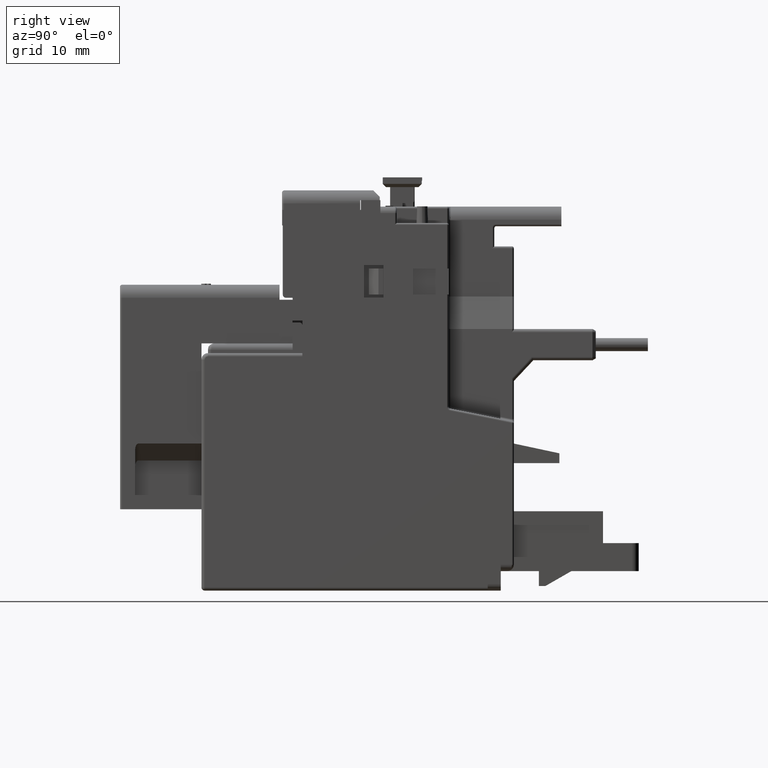
[diagram: clean part render]
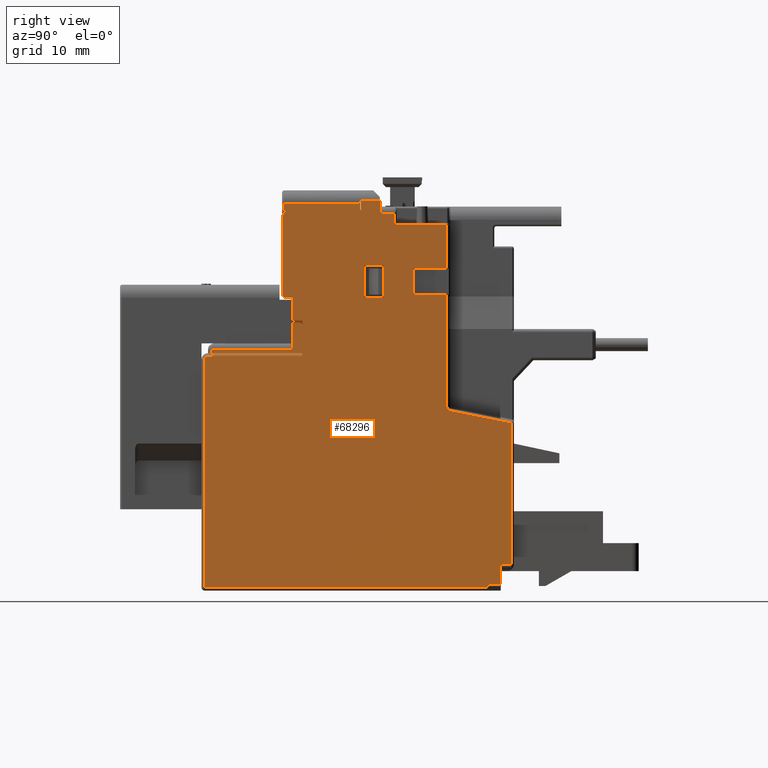
[diagram: same view with one face highlighted and labeled with its STEP entity id]
A machine part, right view. The second image highlights one B-rep face of the part: STEP entity #68296.
In plain terms, the highlighted planar face has unit normal (-1, 0, 0).
Its self-contained STEP definition (entity closure, byte-faithful):
#1878=DIRECTION('',(0.E0,1.E0,0.E0));
#1879=VECTOR('',#1878,1.712598425197E0);
#1880=CARTESIAN_POINT('',(8.858267716535E-1,-5.275590551181E-1,
-2.283464566929E0));
#1881=LINE('',#1880,#1879);
#1901=DIRECTION('',(0.E0,0.E0,1.E0));
#1902=VECTOR('',#1901,1.968503937007E-2);
#1903=CARTESIAN_POINT('',(8.858267716535E-1,1.185039370079E0,
-2.283464566929E0));
#1904=LINE('',#1903,#1902);
#1908=DIRECTION('',(0.E0,1.E0,4.511946372077E-14));
#1909=VECTOR('',#1908,7.874015748031E-2);
#1910=CARTESIAN_POINT('',(8.858267716535E-1,1.185039370079E0,
-2.263779527559E0));
#1911=LINE('',#1910,#1909);
#1922=CARTESIAN_POINT('',(8.858267716535E-1,9.606299212598E-1,
-1.191104678314E0));
#1923=DIRECTION('',(1.E0,0.E0,0.E0));
#1924=DIRECTION('',(0.E0,-1.E0,-3.759955310064E-14));
#1925=AXIS2_PLACEMENT_3D('',#1922,#1923,#1924);
#1930=DIRECTION('',(0.E0,9.805806756909E-1,-1.961161351385E-1));
#1931=VECTOR('',#1930,3.821321529739E-1);
#1932=CARTESIAN_POINT('',(8.858267716535E-1,9.559972566510E-1,
-1.214268001362E0));
#1933=LINE('',#1932,#1931);
#1937=DIRECTION('',(0.E0,0.E0,-1.E0));
#1938=VECTOR('',#1937,1.181102362205E-1);
#1939=CARTESIAN_POINT('',(8.858267716535E-1,1.263779527559E0,
-2.145669291339E0));
#1940=LINE('',#1939,#1938);
#1944=CARTESIAN_POINT('',(8.858267716535E-1,-5.078740157480E-1,
-9.055118110236E-1));
#1945=DIRECTION('',(-1.E0,0.E0,0.E0));
#1946=DIRECTION('',(0.E0,-1.E0,0.E0));
#1947=AXIS2_PLACEMENT_3D('',#1944,#1945,#1946);
#1952=DIRECTION('',(0.E0,0.E0,1.E0));
#1953=VECTOR('',#1952,1.968503937008E-2);
#1954=CARTESIAN_POINT('',(8.858267716535E-1,6.299212598425E-2,
-8.858267716535E-1));
#1955=LINE('',#1954,#1953);
#1959=DIRECTION('',(0.E0,-1.E0,0.E0));
#1960=VECTOR('',#1959,5.511811023622E-1);
#1961=CARTESIAN_POINT('',(8.858267716535E-1,6.299212598425E-2,
-8.661417322835E-1));
#1962=LINE('',#1961,#1960);
#1966=DIRECTION('',(0.E0,0.E0,1.E0));
#1967=VECTOR('',#1966,1.653543307087E-1);
#1968=CARTESIAN_POINT('',(8.858267716535E-1,3.937007874016E-3,
-8.464566929134E-1));
#1969=LINE('',#1968,#1967);
#1973=DIRECTION('',(0.E0,1.E0,1.409983241274E-14));
#1974=VECTOR('',#1973,3.937007874016E-2);
#1975=CARTESIAN_POINT('',(8.858267716535E-1,3.937007874016E-3,
-6.811023622047E-1));
#1976=LINE('',#1975,#1974);
#1980=CARTESIAN_POINT('',(8.858267716535E-1,4.330708661417E-2,
-7.007874015748E-1));
#1981=DIRECTION('',(-1.E0,0.E0,0.E0));
#1982=DIRECTION('',(0.E0,-4.370948047949E-14,1.E0));
#1983=AXIS2_PLACEMENT_3D('',#1980,#1981,#1982);
#1988=DIRECTION('',(0.E0,0.E0,1.E0));
#1989=VECTOR('',#1988,3.149606299213E-2);
#1990=CARTESIAN_POINT('',(8.858267716535E-1,6.299212598425E-2,
-7.007874015748E-1));
#1991=LINE('',#1990,#1989);
#1995=DIRECTION('',(0.E0,-1.E0,0.E0));
#1996=VECTOR('',#1995,5.905511811024E-2);
#1997=CARTESIAN_POINT('',(8.858267716535E-1,6.299212598425E-2,
-6.692913385827E-1));
#1998=LINE('',#1997,#1996);
#2002=DIRECTION('',(0.E0,0.E0,1.E0));
#2003=VECTOR('',#2002,1.377952755906E-1);
#2004=CARTESIAN_POINT('',(8.858267716535E-1,3.937007874016E-3,
-6.692913385827E-1));
#2005=LINE('',#2004,#2003);
#2009=DIRECTION('',(0.E0,-1.E0,0.E0));
#2010=VECTOR('',#2009,3.937007874016E-2);
#2011=CARTESIAN_POINT('',(8.858267716535E-1,3.937007874016E-3,
-5.314960629921E-1));
#2012=LINE('',#2011,#2010);
#2016=CARTESIAN_POINT('',(8.858267716535E-1,-3.543307086614E-2,
-5.118110236220E-1));
#2017=DIRECTION('',(-1.E0,0.E0,0.E0));
#2018=DIRECTION('',(0.E0,0.E0,-1.E0));
#2019=AXIS2_PLACEMENT_3D('',#2016,#2017,#2018);
#2024=CARTESIAN_POINT('',(8.858267716535E-1,-1.574803149606E-2,
-3.937007874016E-2));
#2025=DIRECTION('',(-1.E0,0.E0,0.E0));
#2026=DIRECTION('',(0.E0,-1.E0,0.E0));
#2027=AXIS2_PLACEMENT_3D('',#2024,#2025,#2026);
#2032=DIRECTION('',(0.E0,-1.E0,0.E0));
#2033=VECTOR('',#2032,3.149606299212E-2);
#2034=CARTESIAN_POINT('',(8.858267716535E-1,-1.574803149607E-2,0.E0));
#2035=LINE('',#2034,#2033);
#2039=DIRECTION('',(0.E0,0.E0,-1.E0));
#2040=VECTOR('',#2039,3.937007874016E-2);
#2041=CARTESIAN_POINT('',(8.858267716535E-1,4.133858267717E-1,
3.937007874016E-2));
#2042=LINE('',#2041,#2040);
#2046=DIRECTION('',(0.E0,1.E0,0.E0));
#2047=VECTOR('',#2046,1.181102362205E-1);
#2048=CARTESIAN_POINT('',(8.858267716535E-1,4.173228346457E-1,
5.905511811024E-2));
#2049=LINE('',#2048,#2047);
#2053=DIRECTION('',(0.E0,0.E0,-1.E0));
#2054=VECTOR('',#2053,7.874015748031E-2);
#2055=CARTESIAN_POINT('',(8.858267716535E-1,5.354330708661E-1,
5.905511811024E-2));
#2056=LINE('',#2055,#2054);
#2060=DIRECTION('',(0.E0,-1.E0,0.E0));
#2061=VECTOR('',#2060,2.047244094488E-1);
#2062=CARTESIAN_POINT('',(8.858267716535E-1,9.370078740157E-1,
-3.543307086614E-1));
#2063=LINE('',#2062,#2061);
#2067=DIRECTION('',(0.E0,0.E0,-1.E0));
#2068=VECTOR('',#2067,1.968503937008E-1);
#2069=CARTESIAN_POINT('',(8.858267716535E-1,4.370078740157E-1,
-3.346456692913E-1));
#2070=LINE('',#2069,#2068);
#2074=DIRECTION('',(0.E0,0.E0,1.E0));
#2075=VECTOR('',#2074,1.968503937008E-1);
#2076=CARTESIAN_POINT('',(8.858267716535E-1,5.551181102362E-1,
-5.314960629921E-1));
#2077=LINE('',#2076,#2075);
#2095=DIRECTION('',(0.E0,0.E0,1.E0));
#2096=VECTOR('',#2095,1.574803149606E-1);
#2097=CARTESIAN_POINT('',(8.858267716535E-1,7.322834645669E-1,
-5.118110236220E-1));
#2098=LINE('',#2097,#2096);
#2124=DIRECTION('',(0.E0,0.E0,1.E0));
#2125=VECTOR('',#2124,2.637795275591E-1);
#2126=CARTESIAN_POINT('',(8.858267716535E-1,9.370078740157E-1,
-3.543307086614E-1));
#2127=LINE('',#2126,#2125);
#2162=DIRECTION('',(0.E0,-1.E0,0.E0));
#2163=VECTOR('',#2162,3.149606299213E-1);
#2164=CARTESIAN_POINT('',(8.858267716535E-1,9.370078740157E-1,
-9.055118110236E-2));
#2165=LINE('',#2164,#2163);
#2195=DIRECTION('',(0.E0,0.E0,1.E0));
#2196=VECTOR('',#2195,7.086614173228E-2);
#2197=CARTESIAN_POINT('',(8.858267716535E-1,6.220472440945E-1,
-9.055118110236E-2));
#2198=LINE('',#2197,#2196);
#3003=DIRECTION('',(0.E0,1.E0,0.E0));
#3004=VECTOR('',#3003,1.181102362205E-1);
#3005=CARTESIAN_POINT('',(8.858267716535E-1,4.370078740157E-1,
-3.346456692913E-1));
#3006=LINE('',#3005,#3004);
#4546=DIRECTION('',(0.E0,0.E0,-1.E0));
#4547=VECTOR('',#4546,5.905511811024E-2);
#4548=CARTESIAN_POINT('',(8.858267716535E-1,4.173228346457E-1,
5.905511811024E-2));
#4549=LINE('',#4548,#4547);
#4798=DIRECTION('',(0.E0,0.E0,-1.E0));
#4799=VECTOR('',#4798,4.724409448819E-1);
#4800=CARTESIAN_POINT('',(8.858267716535E-1,-5.511811023622E-2,
-3.937007874016E-2));
#4801=LINE('',#4800,#4799);
#8942=DIRECTION('',(0.E0,-1.E0,0.E0));
#8943=VECTOR('',#8942,1.181102362205E-1);
#8944=CARTESIAN_POINT('',(8.858267716535E-1,5.551181102362E-1,
-5.314960629921E-1));
#8945=LINE('',#8944,#8943);
#9134=DIRECTION('',(0.E0,-1.E0,0.E0));
#9135=VECTOR('',#9134,2.047244094488E-1);
#9136=CARTESIAN_POINT('',(8.858267716535E-1,9.370078740157E-1,
-5.118110236220E-1));
#9137=LINE('',#9136,#9135);
#25310=DIRECTION('',(3.835154416265E-14,-1.E0,0.E0));
#25311=VECTOR('',#25310,4.921259842520E-1);
#25312=CARTESIAN_POINT('',(8.858267716535E-1,3.937007874016E-3,
-8.464566929134E-1));
#25313=LINE('',#25312,#25311);
#25403=DIRECTION('',(-9.531486711011E-13,-1.494582235750E-13,-1.E0));
#25404=VECTOR('',#25403,1.968503937008E-2);
#25405=CARTESIAN_POINT('',(8.858267716536E-1,-4.881889763780E-1,
-8.464566929134E-1));
#25406=LINE('',#25405,#25404);
#28837=DIRECTION('',(-4.263125800086E-13,1.E0,2.255973186038E-13));
#28838=VECTOR('',#28837,6.692913385828E-2);
#28839=CARTESIAN_POINT('',(8.858267716535E-1,1.263779527559E0,
-2.145669291339E0));
#28840=LINE('',#28839,#28838);
#28871=DIRECTION('',(3.344439574290E-14,0.E0,1.E0));
#28872=VECTOR('',#28871,8.564590090228E-1);
#28873=CARTESIAN_POINT('',(8.858267716535E-1,1.330708661417E0,
-2.145669291339E0));
#28874=LINE('',#28873,#28872);
#28947=DIRECTION('',(0.E0,0.E0,1.E0));
#28948=VECTOR('',#28947,6.792936546921E-1);
#28949=CARTESIAN_POINT('',(8.858267716535E-1,9.370078740157E-1,
-1.191104678314E0));
#28950=LINE('',#28949,#28948);
#33752=DIRECTION('',(0.E0,-1.E0,0.E0));
#33753=VECTOR('',#33752,4.606299212598E-1);
#33754=CARTESIAN_POINT('',(8.858267716535E-1,4.133858267717E-1,
3.937007874016E-2));
#33755=LINE('',#33754,#33753);
#34218=DIRECTION('',(0.E0,0.E0,-1.E0));
#34219=VECTOR('',#34218,3.937007874016E-2);
#34220=CARTESIAN_POINT('',(8.858267716535E-1,-4.724409448819E-2,
3.937007874016E-2));
#34221=LINE('',#34220,#34219);
#34359=DIRECTION('',(0.E0,-1.E0,0.E0));
#34360=VECTOR('',#34359,3.937007874016E-3);
#34361=CARTESIAN_POINT('',(8.858267716535E-1,4.173228346457E-1,0.E0));
#34362=LINE('',#34361,#34360);
#41922=DIRECTION('',(0.E0,0.E0,-1.E0));
#41923=VECTOR('',#41922,1.377952755906E0);
#41924=CARTESIAN_POINT('',(8.858267716535E-1,-5.275590551181E-1,
-9.055118110236E-1));
#41925=LINE('',#41924,#41923);
#41975=DIRECTION('',(0.E0,-1.E0,0.E0));
#41976=VECTOR('',#41975,5.708661417323E-1);
#41977=CARTESIAN_POINT('',(8.858267716535E-1,6.299212598425E-2,
-8.858267716535E-1));
#41978=LINE('',#41977,#41976);
#56035=DIRECTION('',(0.E0,-1.E0,3.544986274226E-14));
#56036=VECTOR('',#56035,8.661417322835E-2);
#56037=CARTESIAN_POINT('',(8.858267716535E-1,6.220472440945E-1,
-1.968503937008E-2));
#56038=LINE('',#56037,#56036);
#57649=CARTESIAN_POINT('',(8.858267716535E-1,1.185039370079E0,
-2.283464566929E0));
#57650=VERTEX_POINT('',#57649);
#57651=CARTESIAN_POINT('',(8.858267716535E-1,-5.275590551181E-1,
-2.283464566929E0));
#57652=VERTEX_POINT('',#57651);
#57653=CARTESIAN_POINT('',(8.858267716535E-1,1.185039370079E0,
-2.263779527559E0));
#57654=VERTEX_POINT('',#57653);
#57655=CARTESIAN_POINT('',(8.858267716535E-1,1.263779527559E0,
-2.263779527559E0));
#57656=VERTEX_POINT('',#57655);
#57657=CARTESIAN_POINT('',(8.858267716535E-1,7.322834645669E-1,
-5.118110236220E-1));
#57658=CARTESIAN_POINT('',(8.858267716535E-1,7.322834645669E-1,
-3.543307086614E-1));
#57659=VERTEX_POINT('',#57657);
#57660=VERTEX_POINT('',#57658);
#57661=CARTESIAN_POINT('',(8.858267716535E-1,9.370078740157E-1,
-5.118110236220E-1));
#57662=VERTEX_POINT('',#57661);
#57663=CARTESIAN_POINT('',(8.858267716535E-1,9.370078740157E-1,
-1.191104678314E0));
#57664=VERTEX_POINT('',#57663);
#57665=CARTESIAN_POINT('',(8.858267716535E-1,9.559972566522E-1,
-1.214268001362E0));
#57666=VERTEX_POINT('',#57665);
#57667=CARTESIAN_POINT('',(8.858267716535E-1,1.330708661417E0,
-1.289210282316E0));
#57668=VERTEX_POINT('',#57667);
#57669=CARTESIAN_POINT('',(8.858267716535E-1,1.330708661417E0,
-2.145669291339E0));
#57670=VERTEX_POINT('',#57669);
#57671=CARTESIAN_POINT('',(8.858267716535E-1,1.263779527559E0,
-2.145669291339E0));
#57672=VERTEX_POINT('',#57671);
#57673=CARTESIAN_POINT('',(8.858267716535E-1,-5.275590551181E-1,
-9.055118110236E-1));
#57674=VERTEX_POINT('',#57673);
#57675=CARTESIAN_POINT('',(8.858267716535E-1,-5.078740157480E-1,
-8.858267716535E-1));
#57676=VERTEX_POINT('',#57675);
#57677=CARTESIAN_POINT('',(8.858267716535E-1,6.299212598425E-2,
-8.858267716535E-1));
#57678=VERTEX_POINT('',#57677);
#57679=CARTESIAN_POINT('',(8.858267716535E-1,6.299212598425E-2,
-8.661417322835E-1));
#57680=VERTEX_POINT('',#57679);
#57681=CARTESIAN_POINT('',(8.858267716535E-1,-4.881889763780E-1,
-8.661417322835E-1));
#57682=VERTEX_POINT('',#57681);
#57683=CARTESIAN_POINT('',(8.858267716536E-1,-4.881889763780E-1,
-8.464566929134E-1));
#57684=VERTEX_POINT('',#57683);
#57685=CARTESIAN_POINT('',(8.858267716535E-1,3.937007874016E-3,
-8.464566929134E-1));
#57686=VERTEX_POINT('',#57685);
#57687=CARTESIAN_POINT('',(8.858267716535E-1,3.937007874016E-3,
-6.811023622047E-1));
#57688=VERTEX_POINT('',#57687);
#57689=CARTESIAN_POINT('',(8.858267716535E-1,4.330708661417E-2,
-6.811023622047E-1));
#57690=VERTEX_POINT('',#57689);
#57691=CARTESIAN_POINT('',(8.858267716535E-1,6.299212598425E-2,
-7.007874015748E-1));
#57692=VERTEX_POINT('',#57691);
#57693=CARTESIAN_POINT('',(8.858267716535E-1,6.299212598425E-2,
-6.692913385827E-1));
#57694=VERTEX_POINT('',#57693);
#57695=CARTESIAN_POINT('',(8.858267716535E-1,3.937007874016E-3,
-6.692913385827E-1));
#57696=VERTEX_POINT('',#57695);
#57697=CARTESIAN_POINT('',(8.858267716535E-1,3.937007874016E-3,
-5.314960629921E-1));
#57698=VERTEX_POINT('',#57697);
#57699=CARTESIAN_POINT('',(8.858267716535E-1,-3.543307086614E-2,
-5.314960629921E-1));
#57700=VERTEX_POINT('',#57699);
#57701=CARTESIAN_POINT('',(8.858267716535E-1,-5.511811023622E-2,
-5.118110236220E-1));
#57702=VERTEX_POINT('',#57701);
#57703=CARTESIAN_POINT('',(8.858267716535E-1,-5.511811023622E-2,
-3.937007874016E-2));
#57704=VERTEX_POINT('',#57703);
#57705=CARTESIAN_POINT('',(8.858267716535E-1,-1.574803149607E-2,0.E0));
#57706=VERTEX_POINT('',#57705);
#57707=CARTESIAN_POINT('',(8.858267716535E-1,-4.724409448819E-2,0.E0));
#57708=VERTEX_POINT('',#57707);
#57709=CARTESIAN_POINT('',(8.858267716535E-1,-4.724409448819E-2,
3.937007874016E-2));
#57710=VERTEX_POINT('',#57709);
#57711=CARTESIAN_POINT('',(8.858267716535E-1,4.133858267717E-1,
3.937007874016E-2));
#57712=VERTEX_POINT('',#57711);
#57713=CARTESIAN_POINT('',(8.858267716535E-1,4.133858267717E-1,0.E0));
#57714=VERTEX_POINT('',#57713);
#57715=CARTESIAN_POINT('',(8.858267716535E-1,4.173228346457E-1,0.E0));
#57716=VERTEX_POINT('',#57715);
#57717=CARTESIAN_POINT('',(8.858267716535E-1,4.173228346457E-1,
5.905511811024E-2));
#57718=VERTEX_POINT('',#57717);
#57719=CARTESIAN_POINT('',(8.858267716535E-1,5.354330708661E-1,
5.905511811024E-2));
#57720=VERTEX_POINT('',#57719);
#57721=CARTESIAN_POINT('',(8.858267716535E-1,5.354330708661E-1,
-1.968503937007E-2));
#57722=VERTEX_POINT('',#57721);
#57723=CARTESIAN_POINT('',(8.858267716535E-1,6.220472440945E-1,
-1.968503937008E-2));
#57724=VERTEX_POINT('',#57723);
#57725=CARTESIAN_POINT('',(8.858267716535E-1,6.220472440945E-1,
-9.055118110236E-2));
#57726=VERTEX_POINT('',#57725);
#57727=CARTESIAN_POINT('',(8.858267716535E-1,9.370078740157E-1,
-9.055118110236E-2));
#57728=VERTEX_POINT('',#57727);
#57729=CARTESIAN_POINT('',(8.858267716535E-1,9.370078740157E-1,
-3.543307086614E-1));
#57730=VERTEX_POINT('',#57729);
#57731=CARTESIAN_POINT('',(8.858267716535E-1,4.370078740157E-1,
-3.346456692913E-1));
#57732=CARTESIAN_POINT('',(8.858267716535E-1,4.370078740157E-1,
-5.314960629921E-1));
#57733=VERTEX_POINT('',#57731);
#57734=VERTEX_POINT('',#57732);
#57735=CARTESIAN_POINT('',(8.858267716535E-1,5.551181102362E-1,
-5.314960629921E-1));
#57736=VERTEX_POINT('',#57735);
#57737=CARTESIAN_POINT('',(8.858267716535E-1,5.551181102362E-1,
-3.346456692913E-1));
#57738=VERTEX_POINT('',#57737);
#68200=CARTESIAN_POINT('',(8.858267716535E-1,4.133858267717E-1,
5.905511811024E-2));
#68201=DIRECTION('',(-1.E0,0.E0,0.E0));
#68202=DIRECTION('',(0.E0,-1.E0,0.E0));
#68203=AXIS2_PLACEMENT_3D('',#68200,#68201,#68202);
#68204=PLANE('',#68203);
#68206=ORIENTED_EDGE('',*,*,#68205,.F.);
#68208=ORIENTED_EDGE('',*,*,#68207,.F.);
#68210=ORIENTED_EDGE('',*,*,#68209,.F.);
#68212=ORIENTED_EDGE('',*,*,#68211,.T.);
#68214=ORIENTED_EDGE('',*,*,#68213,.T.);
#68216=ORIENTED_EDGE('',*,*,#68215,.F.);
#68218=ORIENTED_EDGE('',*,*,#68217,.F.);
#68220=ORIENTED_EDGE('',*,*,#68219,.T.);
#68221=ORIENTED_EDGE('',*,*,#68192,.F.);
#68222=ORIENTED_EDGE('',*,*,#68181,.F.);
#68223=ORIENTED_EDGE('',*,*,#68167,.F.);
#68225=ORIENTED_EDGE('',*,*,#68224,.F.);
#68227=ORIENTED_EDGE('',*,*,#68226,.T.);
#68229=ORIENTED_EDGE('',*,*,#68228,.F.);
#68231=ORIENTED_EDGE('',*,*,#68230,.T.);
#68233=ORIENTED_EDGE('',*,*,#68232,.T.);
#68235=ORIENTED_EDGE('',*,*,#68234,.F.);
#68237=ORIENTED_EDGE('',*,*,#68236,.F.);
#68239=ORIENTED_EDGE('',*,*,#68238,.T.);
#68241=ORIENTED_EDGE('',*,*,#68240,.T.);
#68243=ORIENTED_EDGE('',*,*,#68242,.T.);
#68245=ORIENTED_EDGE('',*,*,#68244,.T.);
#68247=ORIENTED_EDGE('',*,*,#68246,.T.);
#68249=ORIENTED_EDGE('',*,*,#68248,.T.);
#68251=ORIENTED_EDGE('',*,*,#68250,.T.);
#68253=ORIENTED_EDGE('',*,*,#68252,.T.);
#68255=ORIENTED_EDGE('',*,*,#68254,.F.);
#68257=ORIENTED_EDGE('',*,*,#68256,.T.);
#68259=ORIENTED_EDGE('',*,*,#68258,.T.);
#68261=ORIENTED_EDGE('',*,*,#68260,.F.);
#68263=ORIENTED_EDGE('',*,*,#68262,.F.);
#68265=ORIENTED_EDGE('',*,*,#68264,.T.);
#68267=ORIENTED_EDGE('',*,*,#68266,.F.);
#68269=ORIENTED_EDGE('',*,*,#68268,.F.);
#68271=ORIENTED_EDGE('',*,*,#68270,.T.);
#68273=ORIENTED_EDGE('',*,*,#68272,.T.);
#68275=ORIENTED_EDGE('',*,*,#68274,.F.);
#68277=ORIENTED_EDGE('',*,*,#68276,.F.);
#68279=ORIENTED_EDGE('',*,*,#68278,.F.);
#68281=ORIENTED_EDGE('',*,*,#68280,.F.);
#68283=ORIENTED_EDGE('',*,*,#68282,.T.);
#68284=EDGE_LOOP('',(#68206,#68208,#68210,#68212,#68214,#68216,#68218,#68220,
#68221,#68222,#68223,#68225,#68227,#68229,#68231,#68233,#68235,#68237,#68239,
#68241,#68243,#68245,#68247,#68249,#68251,#68253,#68255,#68257,#68259,#68261,
#68263,#68265,#68267,#68269,#68271,#68273,#68275,#68277,#68279,#68281,#68283));
#68285=FACE_OUTER_BOUND('',#68284,.F.);
#68287=ORIENTED_EDGE('',*,*,#68286,.T.);
#68289=ORIENTED_EDGE('',*,*,#68288,.F.);
#68291=ORIENTED_EDGE('',*,*,#68290,.T.);
#68293=ORIENTED_EDGE('',*,*,#68292,.F.);
#68294=EDGE_LOOP('',(#68287,#68289,#68291,#68293));
#68295=FACE_BOUND('',#68294,.F.);
#1926=CIRCLE('',#1925,2.362204724409E-2);
#1948=CIRCLE('',#1947,1.968503937008E-2);
#1984=CIRCLE('',#1983,1.968503937008E-2);
#2020=CIRCLE('',#2019,1.968503937008E-2);
#2028=CIRCLE('',#2027,3.937007874016E-2);
#68167=EDGE_CURVE('',#57652,#57650,#1881,.T.);
#68181=EDGE_CURVE('',#57650,#57654,#1904,.T.);
#68192=EDGE_CURVE('',#57654,#57656,#1911,.T.);
#68205=EDGE_CURVE('',#57659,#57660,#2098,.T.);
#68207=EDGE_CURVE('',#57662,#57659,#9137,.T.);
#68209=EDGE_CURVE('',#57664,#57662,#28950,.T.);
#68211=EDGE_CURVE('',#57664,#57666,#1926,.T.);
#68213=EDGE_CURVE('',#57666,#57668,#1933,.T.);
#68215=EDGE_CURVE('',#57670,#57668,#28874,.T.);
#68217=EDGE_CURVE('',#57672,#57670,#28840,.T.);
#68219=EDGE_CURVE('',#57672,#57656,#1940,.T.);
#68224=EDGE_CURVE('',#57674,#57652,#41925,.T.);
#68226=EDGE_CURVE('',#57674,#57676,#1948,.T.);
#68228=EDGE_CURVE('',#57678,#57676,#41978,.T.);
#68230=EDGE_CURVE('',#57678,#57680,#1955,.T.);
#68232=EDGE_CURVE('',#57680,#57682,#1962,.T.);
#68234=EDGE_CURVE('',#57684,#57682,#25406,.T.);
#68236=EDGE_CURVE('',#57686,#57684,#25313,.T.);
#68238=EDGE_CURVE('',#57686,#57688,#1969,.T.);
#68240=EDGE_CURVE('',#57688,#57690,#1976,.T.);
#68242=EDGE_CURVE('',#57690,#57692,#1984,.T.);
#68244=EDGE_CURVE('',#57692,#57694,#1991,.T.);
#68246=EDGE_CURVE('',#57694,#57696,#1998,.T.);
#68248=EDGE_CURVE('',#57696,#57698,#2005,.T.);
#68250=EDGE_CURVE('',#57698,#57700,#2012,.T.);
#68252=EDGE_CURVE('',#57700,#57702,#2020,.T.);
#68254=EDGE_CURVE('',#57704,#57702,#4801,.T.);
#68256=EDGE_CURVE('',#57704,#57706,#2028,.T.);
#68258=EDGE_CURVE('',#57706,#57708,#2035,.T.);
#68260=EDGE_CURVE('',#57710,#57708,#34221,.T.);
#68262=EDGE_CURVE('',#57712,#57710,#33755,.T.);
#68264=EDGE_CURVE('',#57712,#57714,#2042,.T.);
#68266=EDGE_CURVE('',#57716,#57714,#34362,.T.);
#68268=EDGE_CURVE('',#57718,#57716,#4549,.T.);
#68270=EDGE_CURVE('',#57718,#57720,#2049,.T.);
#68272=EDGE_CURVE('',#57720,#57722,#2056,.T.);
#68274=EDGE_CURVE('',#57724,#57722,#56038,.T.);
#68276=EDGE_CURVE('',#57726,#57724,#2198,.T.);
#68278=EDGE_CURVE('',#57728,#57726,#2165,.T.);
#68280=EDGE_CURVE('',#57730,#57728,#2127,.T.);
#68282=EDGE_CURVE('',#57730,#57660,#2063,.T.);
#68286=EDGE_CURVE('',#57733,#57734,#2070,.T.);
#68288=EDGE_CURVE('',#57736,#57734,#8945,.T.);
#68290=EDGE_CURVE('',#57736,#57738,#2077,.T.);
#68292=EDGE_CURVE('',#57733,#57738,#3006,.T.);
#68296=ADVANCED_FACE('',(#68285,#68295),#68204,.F.);